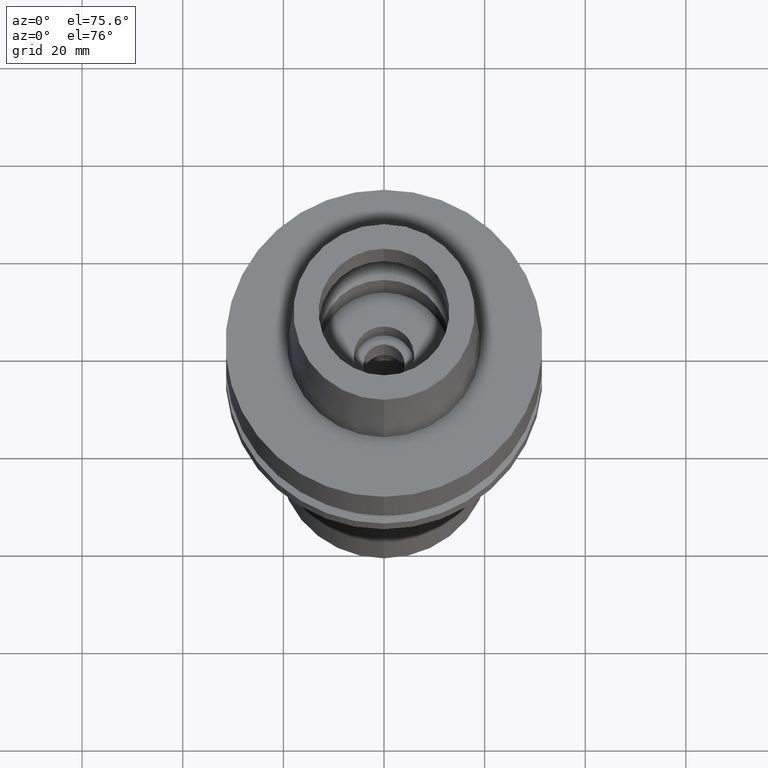
[diagram: clean part render]
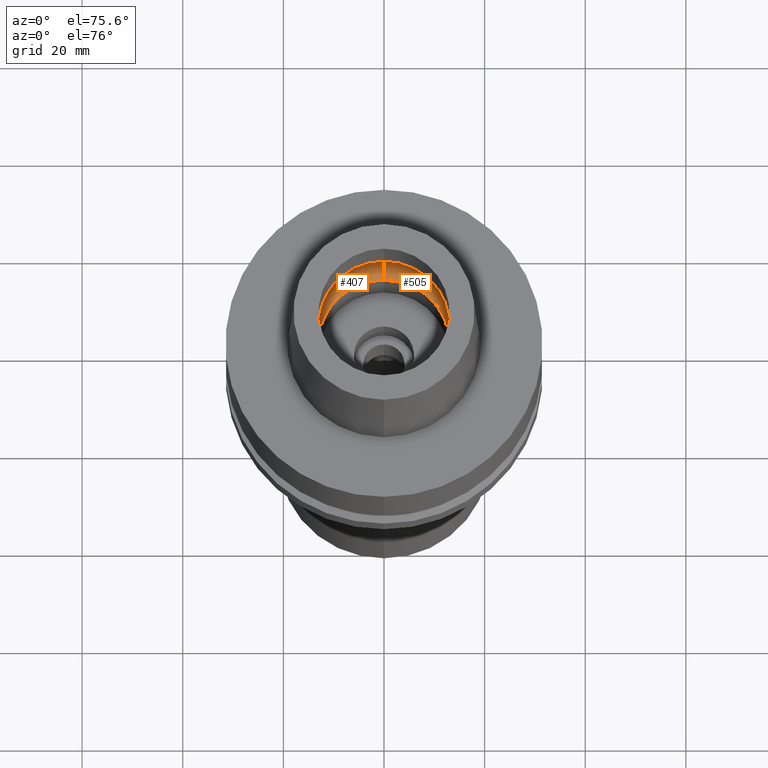
[diagram: same view with one multi-face feature highlighted, each face labeled with its STEP entity id]
A machine part, auxiliary view. The highlighted faces form ONE feature: a constant-radius fillet chain: 2 tangent blend faces with common blend radius 6 mm. The faces share edges in the B-rep.
Their STEP definitions:
[1] entity #407 (Torus):
#28 = DIRECTION ( 'NONE',  ( 0.0000000000000000000, 0.5000000000000169864, -0.8660254037844289376 ) ) ;
#34 = CARTESIAN_POINT ( 'NONE',  ( 0.0000000000000000000, -13.00000000000000000, 0.04984757729338999688 ) ) ;
#43 = CIRCLE ( 'NONE', #1979, 16.00000000000000000 ) ;
#241 = CARTESIAN_POINT ( 'NONE',  ( 0.0000000000000000000, 0.0000000000000000000, 5.245999999999999552 ) ) ;
#295 = DIRECTION ( 'NONE',  ( 0.0000000000000000000, 1.000000000000000000, 0.0000000000000000000 ) ) ;
#407 = ADVANCED_FACE ( 'NONE', ( #1331 ), #2125, .F. ) ;
#443 = VERTEX_POINT ( 'NONE', #1119 ) ;
#472 = VERTEX_POINT ( 'NONE', #2244 ) ;
#485 = DIRECTION ( 'NONE',  ( 0.0000000000000000000, 0.0000000000000000000, 1.000000000000000000 ) ) ;
#561 = AXIS2_PLACEMENT_3D ( 'NONE', #2424, #2009, #2484 ) ;
#583 = CIRCLE ( 'NONE', #730, 13.00000000000000000 ) ;
#612 = CIRCLE ( 'NONE', #561, 6.000000000000000000 ) ;
#669 = EDGE_LOOP ( 'NONE', ( #1716, #933, #2348, #1153 ) ) ;
#730 = AXIS2_PLACEMENT_3D ( 'NONE', #1182, #2740, #295 ) ;
#863 = DIRECTION ( 'NONE',  ( 1.000000000000000000, 0.0000000000000000000, 0.0000000000000000000 ) ) ;
#900 = CARTESIAN_POINT ( 'NONE',  ( 0.0000000000000000000, -16.00000000000000000, 5.245999999999999552 ) ) ;
#933 = ORIENTED_EDGE ( 'NONE', *, *, #2799, .F. ) ;
#1119 = CARTESIAN_POINT ( 'NONE',  ( 0.0000000000000000000, 13.00000000000000000, 0.04984757729338999688 ) ) ;
#1120 = DIRECTION ( 'NONE',  ( 0.0000000000000000000, 0.0000000000000000000, -1.000000000000000000 ) ) ;
#1153 = ORIENTED_EDGE ( 'NONE', *, *, #2850, .T. ) ;
#1176 = EDGE_CURVE ( 'NONE', #443, #1897, #583, .T. ) ;
#1182 = CARTESIAN_POINT ( 'NONE',  ( 0.0000000000000000000, 0.0000000000000000000, 0.04984757729338999688 ) ) ;
#1331 = FACE_OUTER_BOUND ( 'NONE', #669, .T. ) ;
#1436 = AXIS2_PLACEMENT_3D ( 'NONE', #2043, #863, #28 ) ;
#1511 = DIRECTION ( 'NONE',  ( 0.0000000000000000000, -1.000000000000000000, 0.0000000000000000000 ) ) ;
#1554 = DIRECTION ( 'NONE',  ( 0.0000000000000000000, 1.000000000000000000, 0.0000000000000000000 ) ) ;
#1664 = CIRCLE ( 'NONE', #1436, 6.000000000000000000 ) ;
#1716 = ORIENTED_EDGE ( 'NONE', *, *, #2225, .F. ) ;
#1897 = VERTEX_POINT ( 'NONE', #34 ) ;
#1979 = AXIS2_PLACEMENT_3D ( 'NONE', #241, #1120, #1511 ) ;
#2009 = DIRECTION ( 'NONE',  ( -1.000000000000000000, 0.0000000000000000000, 0.0000000000000000000 ) ) ;
#2043 = CARTESIAN_POINT ( 'NONE',  ( 0.0000000000000000000, 10.00000000000000000, 5.245999999999999552 ) ) ;
#2125 = TOROIDAL_SURFACE ( 'NONE', #2403, 10.00000000000000000, 6.000000000000000000 ) ;
#2204 = CARTESIAN_POINT ( 'NONE',  ( 0.0000000000000000000, 0.0000000000000000000, 5.245999999999999552 ) ) ;
#2225 = EDGE_CURVE ( 'NONE', #2838, #472, #43, .T. ) ;
#2244 = CARTESIAN_POINT ( 'NONE',  ( 0.0000000000000000000, 16.00000000000000000, 5.245999999999999552 ) ) ;
#2348 = ORIENTED_EDGE ( 'NONE', *, *, #1176, .F. ) ;
#2403 = AXIS2_PLACEMENT_3D ( 'NONE', #2204, #485, #1554 ) ;
#2424 = CARTESIAN_POINT ( 'NONE',  ( 0.0000000000000000000, -10.00000000000000000, 5.245999999999999552 ) ) ;
#2484 = DIRECTION ( 'NONE',  ( 0.0000000000000000000, -0.5000000000000169864, -0.8660254037844289376 ) ) ;
#2740 = DIRECTION ( 'NONE',  ( 0.0000000000000000000, 0.0000000000000000000, 1.000000000000000000 ) ) ;
#2799 = EDGE_CURVE ( 'NONE', #1897, #2838, #612, .T. ) ;
#2838 = VERTEX_POINT ( 'NONE', #900 ) ;
#2850 = EDGE_CURVE ( 'NONE', #443, #472, #1664, .T. ) ;
[2] entity #505 (Torus):
#28 = DIRECTION ( 'NONE',  ( 0.0000000000000000000, 0.5000000000000169864, -0.8660254037844289376 ) ) ;
#34 = CARTESIAN_POINT ( 'NONE',  ( 0.0000000000000000000, -13.00000000000000000, 0.04984757729338999688 ) ) ;
#61 = EDGE_LOOP ( 'NONE', ( #890, #1916, #1114, #2208 ) ) ;
#443 = VERTEX_POINT ( 'NONE', #1119 ) ;
#472 = VERTEX_POINT ( 'NONE', #2244 ) ;
#505 = ADVANCED_FACE ( 'NONE', ( #1637 ), #1288, .F. ) ;
#544 = DIRECTION ( 'NONE',  ( 0.0000000000000000000, 0.0000000000000000000, 1.000000000000000000 ) ) ;
#547 = DIRECTION ( 'NONE',  ( 0.0000000000000000000, 1.000000000000000000, 0.0000000000000000000 ) ) ;
#558 = CIRCLE ( 'NONE', #1525, 16.00000000000000000 ) ;
#561 = AXIS2_PLACEMENT_3D ( 'NONE', #2424, #2009, #2484 ) ;
#612 = CIRCLE ( 'NONE', #561, 6.000000000000000000 ) ;
#863 = DIRECTION ( 'NONE',  ( 1.000000000000000000, 0.0000000000000000000, 0.0000000000000000000 ) ) ;
#890 = ORIENTED_EDGE ( 'NONE', *, *, #2595, .F. ) ;
#900 = CARTESIAN_POINT ( 'NONE',  ( 0.0000000000000000000, -16.00000000000000000, 5.245999999999999552 ) ) ;
#991 = CARTESIAN_POINT ( 'NONE',  ( 0.0000000000000000000, 0.0000000000000000000, 5.245999999999999552 ) ) ;
#1114 = ORIENTED_EDGE ( 'NONE', *, *, #2468, .F. ) ;
#1119 = CARTESIAN_POINT ( 'NONE',  ( 0.0000000000000000000, 13.00000000000000000, 0.04984757729338999688 ) ) ;
#1209 = DIRECTION ( 'NONE',  ( 0.0000000000000000000, 0.0000000000000000000, -1.000000000000000000 ) ) ;
#1248 = CIRCLE ( 'NONE', #1475, 13.00000000000000000 ) ;
#1288 = TOROIDAL_SURFACE ( 'NONE', #1984, 10.00000000000000000, 6.000000000000000000 ) ;
#1371 = DIRECTION ( 'NONE',  ( 0.0000000000000000000, 1.000000000000000000, 0.0000000000000000000 ) ) ;
#1408 = CARTESIAN_POINT ( 'NONE',  ( 0.0000000000000000000, 0.0000000000000000000, 5.245999999999999552 ) ) ;
#1436 = AXIS2_PLACEMENT_3D ( 'NONE', #2043, #863, #28 ) ;
#1475 = AXIS2_PLACEMENT_3D ( 'NONE', #2517, #1629, #2528 ) ;
#1525 = AXIS2_PLACEMENT_3D ( 'NONE', #991, #1209, #547 ) ;
#1629 = DIRECTION ( 'NONE',  ( 0.0000000000000000000, 0.0000000000000000000, 1.000000000000000000 ) ) ;
#1637 = FACE_OUTER_BOUND ( 'NONE', #61, .T. ) ;
#1664 = CIRCLE ( 'NONE', #1436, 6.000000000000000000 ) ;
#1897 = VERTEX_POINT ( 'NONE', #34 ) ;
#1916 = ORIENTED_EDGE ( 'NONE', *, *, #2799, .T. ) ;
#1984 = AXIS2_PLACEMENT_3D ( 'NONE', #1408, #544, #1371 ) ;
#2009 = DIRECTION ( 'NONE',  ( -1.000000000000000000, 0.0000000000000000000, 0.0000000000000000000 ) ) ;
#2043 = CARTESIAN_POINT ( 'NONE',  ( 0.0000000000000000000, 10.00000000000000000, 5.245999999999999552 ) ) ;
#2208 = ORIENTED_EDGE ( 'NONE', *, *, #2850, .F. ) ;
#2244 = CARTESIAN_POINT ( 'NONE',  ( 0.0000000000000000000, 16.00000000000000000, 5.245999999999999552 ) ) ;
#2424 = CARTESIAN_POINT ( 'NONE',  ( 0.0000000000000000000, -10.00000000000000000, 5.245999999999999552 ) ) ;
#2468 = EDGE_CURVE ( 'NONE', #472, #2838, #558, .T. ) ;
#2484 = DIRECTION ( 'NONE',  ( 0.0000000000000000000, -0.5000000000000169864, -0.8660254037844289376 ) ) ;
#2517 = CARTESIAN_POINT ( 'NONE',  ( 0.0000000000000000000, 0.0000000000000000000, 0.04984757729338999688 ) ) ;
#2528 = DIRECTION ( 'NONE',  ( 0.0000000000000000000, -1.000000000000000000, 0.0000000000000000000 ) ) ;
#2595 = EDGE_CURVE ( 'NONE', #1897, #443, #1248, .T. ) ;
#2799 = EDGE_CURVE ( 'NONE', #1897, #2838, #612, .T. ) ;
#2838 = VERTEX_POINT ( 'NONE', #900 ) ;
#2850 = EDGE_CURVE ( 'NONE', #443, #472, #1664, .T. ) ;